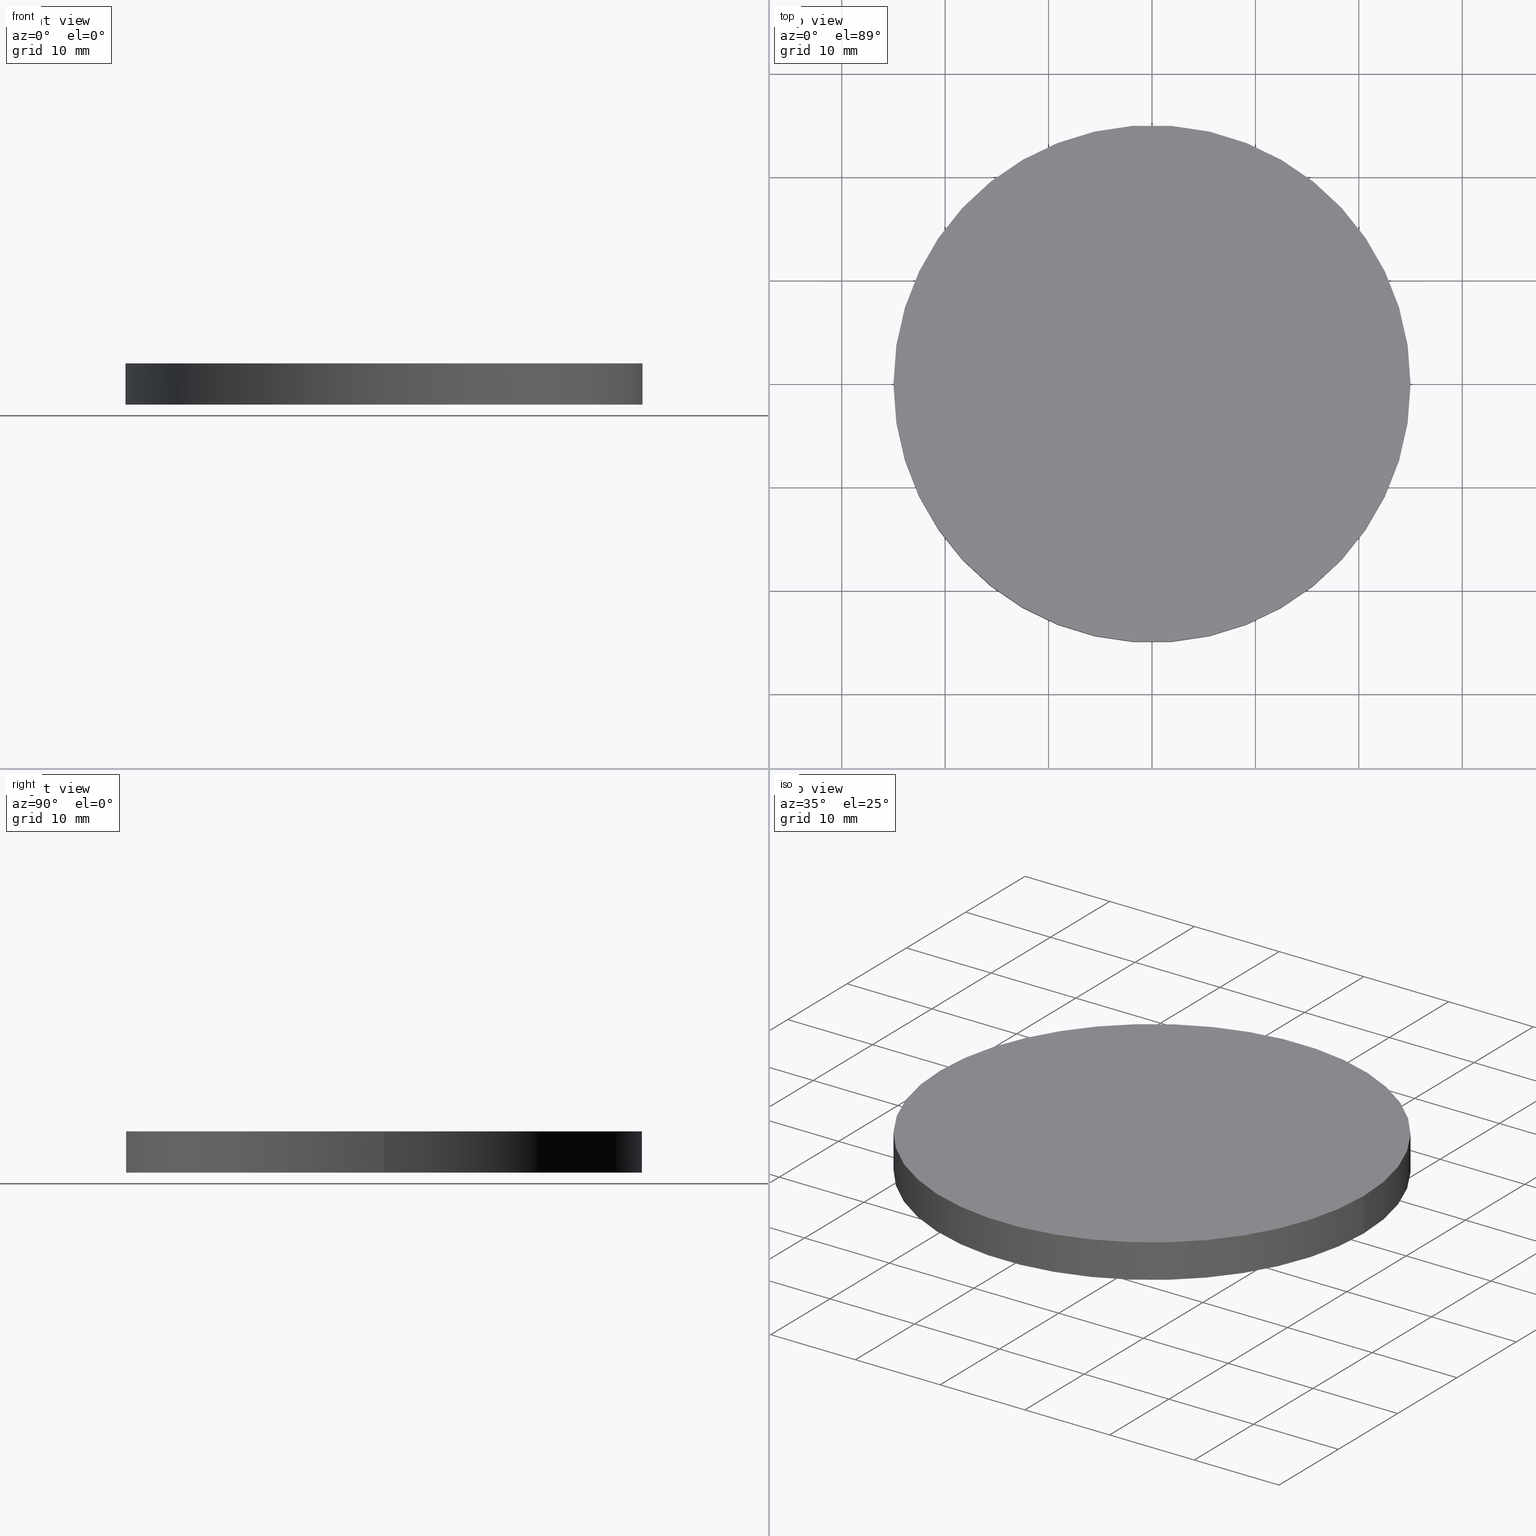
[diagram: canonical four-view strip — front | top / right | iso, engineering-drawing reading convention]
A machine part, canonical four-view strip (front | top / right | iso — engineering-drawing reading convention). The complete STEP part file that produces these views, byte-faithful:
ISO-10303-21;
HEADER;
FILE_DESCRIPTION (( 'STEP AP214' ),
    '1' );
FILE_NAME ('180009.STEP',
    '2019-07-09T05:57:04',
    ( 'user' ),
    ( '΢���й�' ),
    'SwSTEP 2.0',
    'SolidWorks 2016',
    '' );
FILE_SCHEMA (( 'AUTOMOTIVE_DESIGN' ));
ENDSEC;

DATA;
#1 = VECTOR ( 'NONE', #116, 1000.000000000000000 ) ;
#2 = CARTESIAN_POINT ( 'NONE',  ( 25.00000000000000000, 3.061616997868383000E-015, 0.0000000000000000000 ) ) ;
#3 = LINE ( 'NONE', #118, #1 ) ;
#4 = AXIS2_PLACEMENT_3D ( 'NONE', #46, #35, #56 ) ;
#5 = MANIFOLD_SOLID_BREP ( '͹̨-����1', #110 ) ;
#6 = DIRECTION ( 'NONE',  ( 0.0000000000000000000, 0.0000000000000000000, 1.000000000000000000 ) ) ;
#7 = EDGE_CURVE ( 'NONE', #89, #83, #14, .T. ) ;
#8 = CARTESIAN_POINT ( 'NONE',  ( 0.0000000000000000000, 0.0000000000000000000, 4.000000000000000000 ) ) ;
#9 =( LENGTH_UNIT ( ) NAMED_UNIT ( * ) SI_UNIT ( .MILLI., .METRE. ) );
#10 = ADVANCED_BREP_SHAPE_REPRESENTATION ( '180009', ( #5, #100 ), #97 ) ;
#11 = CYLINDRICAL_SURFACE ( 'NONE', #40, 25.00000000000000000 ) ;
#12 = FACE_OUTER_BOUND ( 'NONE', #93, .T. ) ;
#13 = ADVANCED_FACE ( 'NONE', ( #132 ), #78, .F. ) ;
#14 = CIRCLE ( 'NONE', #51, 25.00000000000000000 ) ;
#15 = FACE_OUTER_BOUND ( 'NONE', #69, .T. ) ;
#16 = DIRECTION ( 'NONE',  ( 1.000000000000000000, 0.0000000000000000000, 0.0000000000000000000 ) ) ;
#17 = SHAPE_DEFINITION_REPRESENTATION ( #22, #10 ) ;
#18 = APPLICATION_PROTOCOL_DEFINITION ( 'draft international standard', 'automotive_design', 1998, #55 ) ;
#19 = FACE_OUTER_BOUND ( 'NONE', #133, .T. ) ;
#20 = ORIENTED_EDGE ( 'NONE', *, *, #117, .F. ) ;
#21 = LINE ( 'NONE', #65, #94 ) ;
#22 = PRODUCT_DEFINITION_SHAPE ( 'NONE', 'NONE',  #109 ) ;
#23 = CARTESIAN_POINT ( 'NONE',  ( 0.0000000000000000000, 0.0000000000000000000, 4.000000000000000000 ) ) ;
#24 = ORIENTED_EDGE ( 'NONE', *, *, #108, .T. ) ;
#25 = AXIS2_PLACEMENT_3D ( 'NONE', #23, #85, #95 ) ;
#26 = CIRCLE ( 'NONE', #72, 25.00000000000000000 ) ;
#27 =( NAMED_UNIT ( * ) PLANE_ANGLE_UNIT ( ) SI_UNIT ( $, .RADIAN. ) );
#28 = ORIENTED_EDGE ( 'NONE', *, *, #117, .T. ) ;
#29 =( NAMED_UNIT ( * ) PLANE_ANGLE_UNIT ( ) SI_UNIT ( $, .RADIAN. ) );
#30 = DIRECTION ( 'NONE',  ( 0.0000000000000000000, 0.0000000000000000000, 1.000000000000000000 ) ) ;
#31 = EDGE_CURVE ( 'NONE', #83, #139, #3, .T. ) ;
#32 = DIRECTION ( 'NONE',  ( 0.0000000000000000000, 0.0000000000000000000, 1.000000000000000000 ) ) ;
#33 = FILL_AREA_STYLE ('',( #92 ) ) ;
#34 = COLOUR_RGB ( '',1.000000000000000000, 1.000000000000000000, 1.000000000000000000 ) ;
#35 = DIRECTION ( 'NONE',  ( 0.0000000000000000000, 0.0000000000000000000, 1.000000000000000000 ) ) ;
#36 = CARTESIAN_POINT ( 'NONE',  ( -25.00000000000000000, 0.0000000000000000000, 4.000000000000000000 ) ) ;
#37 =( LENGTH_UNIT ( ) NAMED_UNIT ( * ) SI_UNIT ( .MILLI., .METRE. ) );
#38 = ADVANCED_FACE ( 'NONE', ( #12 ), #11, .T. ) ;
#39 =( NAMED_UNIT ( * ) SI_UNIT ( $, .STERADIAN. ) SOLID_ANGLE_UNIT ( ) );
#40 = AXIS2_PLACEMENT_3D ( 'NONE', #121, #106, #104 ) ;
#41 = ORIENTED_EDGE ( 'NONE', *, *, #7, .T. ) ;
#42 = UNCERTAINTY_MEASURE_WITH_UNIT (LENGTH_MEASURE( 1.000000000000000100E-005 ), #9, 'distance_accuracy_value', 'NONE');
#43 = ORIENTED_EDGE ( 'NONE', *, *, #48, .F. ) ;
#44 = CARTESIAN_POINT ( 'NONE',  ( 0.0000000000000000000, 0.0000000000000000000, 0.0000000000000000000 ) ) ;
#45 = SURFACE_SIDE_STYLE ('',( #126 ) ) ;
#46 = CARTESIAN_POINT ( 'NONE',  ( 0.0000000000000000000, 0.0000000000000000000, 4.000000000000000000 ) ) ;
#47 = CARTESIAN_POINT ( 'NONE',  ( -25.00000000000000000, 0.0000000000000000000, 0.0000000000000000000 ) ) ;
#48 = EDGE_CURVE ( 'NONE', #74, #139, #111, .T. ) ;
#49 = PRESENTATION_STYLE_ASSIGNMENT (( #96 ) ) ;
#50 = ORIENTED_EDGE ( 'NONE', *, *, #31, .T. ) ;
#51 = AXIS2_PLACEMENT_3D ( 'NONE', #8, #6, #66 ) ;
#52 = ORIENTED_EDGE ( 'NONE', *, *, #7, .F. ) ;
#53 = STYLED_ITEM ( 'NONE', ( #137 ), #5 ) ;
#54 =( NAMED_UNIT ( * ) SI_UNIT ( $, .STERADIAN. ) SOLID_ANGLE_UNIT ( ) );
#55 = APPLICATION_CONTEXT ( 'automotive_design' ) ;
#56 = DIRECTION ( 'NONE',  ( 1.000000000000000000, 0.0000000000000000000, -0.0000000000000000000 ) ) ;
#57 = DIRECTION ( 'NONE',  ( 1.000000000000000000, 0.0000000000000000000, -0.0000000000000000000 ) ) ;
#58 = FILL_AREA_STYLE ('',( #77 ) ) ;
#59 = PRODUCT_CONTEXT ( 'NONE', #55, 'mechanical' ) ;
#60 = COLOUR_RGB ( '',1.000000000000000000, 1.000000000000000000, 1.000000000000000000 ) ;
#61 = STYLED_ITEM ( 'NONE', ( #49 ), #10 ) ;
#62 = AXIS2_PLACEMENT_3D ( 'NONE', #105, #134, #57 ) ;
#63 =( NAMED_UNIT ( * ) PLANE_ANGLE_UNIT ( ) SI_UNIT ( $, .RADIAN. ) );
#64 = CARTESIAN_POINT ( 'NONE',  ( 0.0000000000000000000, 0.0000000000000000000, 4.000000000000000000 ) ) ;
#65 = CARTESIAN_POINT ( 'NONE',  ( -25.00000000000000000, 0.0000000000000000000, 4.000000000000000000 ) ) ;
#66 = DIRECTION ( 'NONE',  ( 1.000000000000000000, 0.0000000000000000000, 0.0000000000000000000 ) ) ;
#67 = SURFACE_STYLE_USAGE ( .BOTH. , #135 ) ;
#68 = APPLICATION_PROTOCOL_DEFINITION ( 'draft international standard', 'automotive_design', 1998, #136 ) ;
#69 = EDGE_LOOP ( 'NONE', ( #81, #52, #24, #76 ) ) ;
#70 = PRESENTATION_LAYER_ASSIGNMENT (  '', '', ( #61 ) ) ;
#71 = SURFACE_STYLE_FILL_AREA ( #58 ) ;
#72 = AXIS2_PLACEMENT_3D ( 'NONE', #64, #75, #16 ) ;
#73 = ADVANCED_FACE ( 'NONE', ( #15 ), #128, .T. ) ;
#74 = VERTEX_POINT ( 'NONE', #47 ) ;
#75 = DIRECTION ( 'NONE',  ( 0.0000000000000000000, 0.0000000000000000000, 1.000000000000000000 ) ) ;
#76 = ORIENTED_EDGE ( 'NONE', *, *, #48, .T. ) ;
#77 = FILL_AREA_STYLE_COLOUR ( '', #34 ) ;
#78 = PLANE ( 'NONE',  #62 ) ;
#79 = MECHANICAL_DESIGN_GEOMETRIC_PRESENTATION_REPRESENTATION (  '', ( #61 ), #84 ) ;
#80 = AXIS2_PLACEMENT_3D ( 'NONE', #102, #131, #103 ) ;
#81 = ORIENTED_EDGE ( 'NONE', *, *, #31, .F. ) ;
#82 = UNCERTAINTY_MEASURE_WITH_UNIT (LENGTH_MEASURE( 1.000000000000000100E-005 ), #130, 'distance_accuracy_value', 'NONE');
#83 = VERTEX_POINT ( 'NONE', #113 ) ;
#84 =( GEOMETRIC_REPRESENTATION_CONTEXT ( 3 ) GLOBAL_UNCERTAINTY_ASSIGNED_CONTEXT ( ( #140 ) ) GLOBAL_UNIT_ASSIGNED_CONTEXT ( ( #37, #27, #39 ) ) REPRESENTATION_CONTEXT ( 'NONE', 'WORKASPACE' ) );
#85 = DIRECTION ( 'NONE',  ( -0.0000000000000000000, -0.0000000000000000000, -1.000000000000000000 ) ) ;
#86 = ORIENTED_EDGE ( 'NONE', *, *, #108, .F. ) ;
#87 =( NAMED_UNIT ( * ) SI_UNIT ( $, .STERADIAN. ) SOLID_ANGLE_UNIT ( ) );
#88 = CIRCLE ( 'NONE', #123, 25.00000000000000000 ) ;
#89 = VERTEX_POINT ( 'NONE', #36 ) ;
#90 = ADVANCED_FACE ( 'NONE', ( #19 ), #115, .T. ) ;
#91 = PRODUCT ( '180009', '180009', '', ( #59 ) ) ;
#92 = FILL_AREA_STYLE_COLOUR ( '', #60 ) ;
#93 = EDGE_LOOP ( 'NONE', ( #124, #50, #28, #86 ) ) ;
#94 = VECTOR ( 'NONE', #114, 1000.000000000000000 ) ;
#95 = DIRECTION ( 'NONE',  ( -1.000000000000000000, 0.0000000000000000000, 0.0000000000000000000 ) ) ;
#96 = SURFACE_STYLE_USAGE ( .BOTH. , #45 ) ;
#97 =( GEOMETRIC_REPRESENTATION_CONTEXT ( 3 ) GLOBAL_UNCERTAINTY_ASSIGNED_CONTEXT ( ( #82 ) ) GLOBAL_UNIT_ASSIGNED_CONTEXT ( ( #130, #63, #54 ) ) REPRESENTATION_CONTEXT ( 'NONE', 'WORKASPACE' ) );
#98 = EDGE_LOOP ( 'NONE', ( #43, #20 ) ) ;
#99 = EDGE_CURVE ( 'NONE', #83, #89, #26, .T. ) ;
#100 = AXIS2_PLACEMENT_3D ( 'NONE', #101, #30, #122 ) ;
#101 = CARTESIAN_POINT ( 'NONE',  ( 0.0000000000000000000, 0.0000000000000000000, 0.0000000000000000000 ) ) ;
#102 = CARTESIAN_POINT ( 'NONE',  ( 0.0000000000000000000, 0.0000000000000000000, 0.0000000000000000000 ) ) ;
#103 = DIRECTION ( 'NONE',  ( 1.000000000000000000, 0.0000000000000000000, 0.0000000000000000000 ) ) ;
#104 = DIRECTION ( 'NONE',  ( -1.000000000000000000, 0.0000000000000000000, 0.0000000000000000000 ) ) ;
#105 = CARTESIAN_POINT ( 'NONE',  ( 0.0000000000000000000, 0.0000000000000000000, 0.0000000000000000000 ) ) ;
#106 = DIRECTION ( 'NONE',  ( -0.0000000000000000000, -0.0000000000000000000, -1.000000000000000000 ) ) ;
#107 =( GEOMETRIC_REPRESENTATION_CONTEXT ( 3 ) GLOBAL_UNCERTAINTY_ASSIGNED_CONTEXT ( ( #42 ) ) GLOBAL_UNIT_ASSIGNED_CONTEXT ( ( #9, #29, #87 ) ) REPRESENTATION_CONTEXT ( 'NONE', 'WORKASPACE' ) );
#108 = EDGE_CURVE ( 'NONE', #89, #74, #21, .T. ) ;
#109 = PRODUCT_DEFINITION ( 'δ֪', '', #119, #120 ) ;
#110 = CLOSED_SHELL ( 'NONE', ( #38, #73, #90, #13 ) ) ;
#111 = CIRCLE ( 'NONE', #80, 25.00000000000000000 ) ;
#112 = DIRECTION ( 'NONE',  ( 1.000000000000000000, 0.0000000000000000000, 0.0000000000000000000 ) ) ;
#113 = CARTESIAN_POINT ( 'NONE',  ( 25.00000000000000000, 3.061616997868383000E-015, 4.000000000000000000 ) ) ;
#114 = DIRECTION ( 'NONE',  ( -0.0000000000000000000, -0.0000000000000000000, -1.000000000000000000 ) ) ;
#115 = PLANE ( 'NONE',  #4 ) ;
#116 = DIRECTION ( 'NONE',  ( -0.0000000000000000000, -0.0000000000000000000, -1.000000000000000000 ) ) ;
#117 = EDGE_CURVE ( 'NONE', #139, #74, #88, .T. ) ;
#118 = CARTESIAN_POINT ( 'NONE',  ( 25.00000000000000000, 3.061616997868383000E-015, 4.000000000000000000 ) ) ;
#119 = PRODUCT_DEFINITION_FORMATION_WITH_SPECIFIED_SOURCE ( '�κ�', '', #91, .NOT_KNOWN. ) ;
#120 = PRODUCT_DEFINITION_CONTEXT ( 'detailed design', #136, 'design' ) ;
#121 = CARTESIAN_POINT ( 'NONE',  ( 0.0000000000000000000, 0.0000000000000000000, 4.000000000000000000 ) ) ;
#122 = DIRECTION ( 'NONE',  ( 1.000000000000000000, 0.0000000000000000000, 0.0000000000000000000 ) ) ;
#123 = AXIS2_PLACEMENT_3D ( 'NONE', #44, #32, #112 ) ;
#124 = ORIENTED_EDGE ( 'NONE', *, *, #99, .F. ) ;
#125 = PRESENTATION_LAYER_ASSIGNMENT (  '', '', ( #53 ) ) ;
#126 = SURFACE_STYLE_FILL_AREA ( #33 ) ;
#127 = ORIENTED_EDGE ( 'NONE', *, *, #99, .T. ) ;
#128 = CYLINDRICAL_SURFACE ( 'NONE', #25, 25.00000000000000000 ) ;
#129 = PRODUCT_RELATED_PRODUCT_CATEGORY ( 'part', '', ( #91 ) ) ;
#130 =( LENGTH_UNIT ( ) NAMED_UNIT ( * ) SI_UNIT ( .MILLI., .METRE. ) );
#131 = DIRECTION ( 'NONE',  ( 0.0000000000000000000, 0.0000000000000000000, 1.000000000000000000 ) ) ;
#132 = FACE_OUTER_BOUND ( 'NONE', #98, .T. ) ;
#133 = EDGE_LOOP ( 'NONE', ( #41, #127 ) ) ;
#134 = DIRECTION ( 'NONE',  ( 0.0000000000000000000, 0.0000000000000000000, 1.000000000000000000 ) ) ;
#135 = SURFACE_SIDE_STYLE ('',( #71 ) ) ;
#136 = APPLICATION_CONTEXT ( 'automotive_design' ) ;
#137 = PRESENTATION_STYLE_ASSIGNMENT (( #67 ) ) ;
#138 = MECHANICAL_DESIGN_GEOMETRIC_PRESENTATION_REPRESENTATION (  '', ( #53 ), #107 ) ;
#139 = VERTEX_POINT ( 'NONE', #2 ) ;
#140 = UNCERTAINTY_MEASURE_WITH_UNIT (LENGTH_MEASURE( 1.000000000000000100E-005 ), #37, 'distance_accuracy_value', 'NONE');
ENDSEC;
END-ISO-10303-21;
